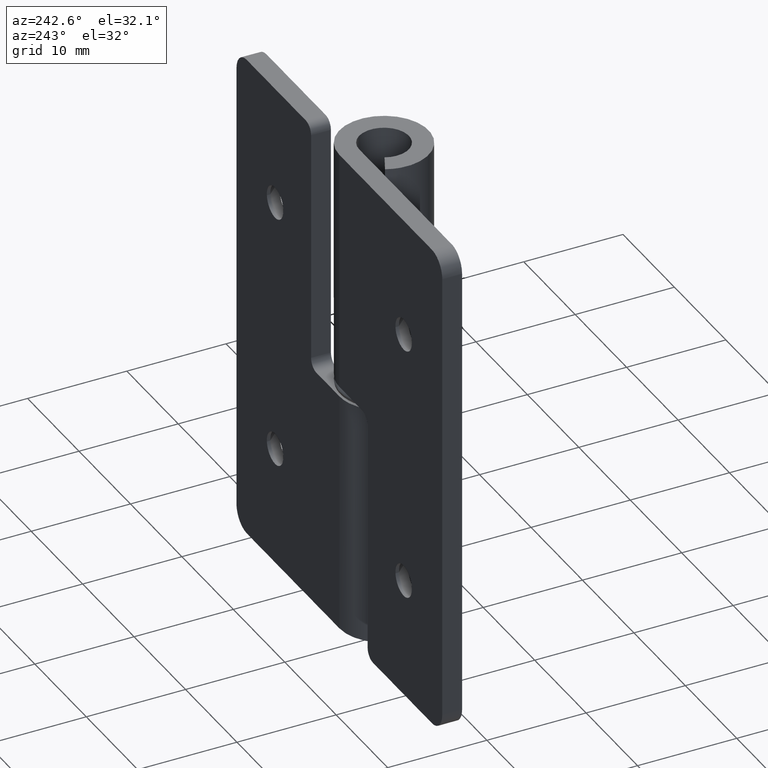
[diagram: clean part render]
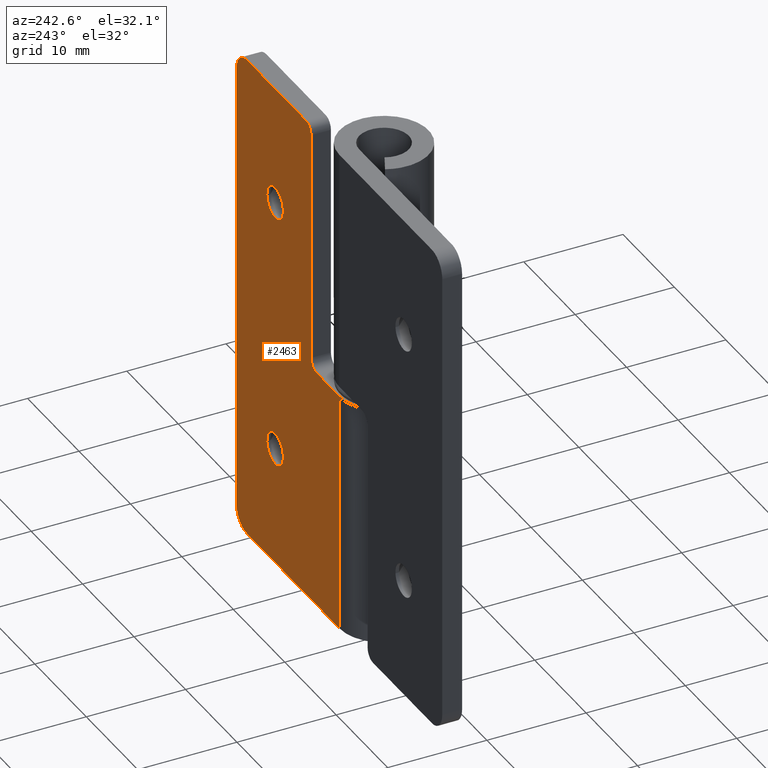
[diagram: same view with one face highlighted and labeled with its STEP entity id]
A machine part, auxiliary view. The second image highlights one B-rep face of the part: STEP entity #2463.
In plain terms, the highlighted face is a freeform B-spline surface patch.
Its self-contained STEP definition (entity closure, byte-faithful):
#1512=CARTESIAN_POINT('',(10.904932266060730,4.499999999995415,38.125534553362833));
#1513=VERTEX_POINT('',#1512);
#1519=CARTESIAN_POINT('',(12.500000000009139,4.499999999995415,39.599999999991027));
#1520=VERTEX_POINT('',#1519);
#1521=CARTESIAN_POINT('',(12.500000000009139,4.499999999995415,39.599999999991027));
#1522=CARTESIAN_POINT('',(11.020975213549372,4.499999999995416,39.599999999991027));
#1523=CARTESIAN_POINT('',(10.904932266060738,4.499999999995414,38.125534553362833));
#1531=(BOUNDED_CURVE()B_SPLINE_CURVE(2,(#1521,#1522,#1523),.UNSPECIFIED.,.F.,.U.)B_SPLINE_CURVE_WITH_KNOTS((3,3),(0.0,0.236331300611382),.UNSPECIFIED.)CURVE()GEOMETRIC_REPRESENTATION_ITEM()RATIONAL_B_SPLINE_CURVE((1.0,0.723120658630251,0.969723356127187))REPRESENTATION_ITEM(''));
#1532=EDGE_CURVE('',#1520,#1513,#1531,.T.);
#1534=CARTESIAN_POINT('',(14.095067733957549,4.499999999995415,37.874465446637167));
#1535=VERTEX_POINT('',#1534);
#1536=CARTESIAN_POINT('',(14.095067733957551,4.499999999995417,37.874465446637174));
#1537=CARTESIAN_POINT('',(14.100000000000177,4.499999999995416,37.937135828688128));
#1538=CARTESIAN_POINT('',(14.100000000000181,4.499999999995415,38.0));
#1539=CARTESIAN_POINT('',(14.100000000000179,4.499999999995415,39.599999999991041));
#1540=CARTESIAN_POINT('',(12.500000000009139,4.499999999995415,39.599999999991027));
#1548=(BOUNDED_CURVE()B_SPLINE_CURVE(2,(#1536,#1537,#1538,#1539,#1540),.UNSPECIFIED.,.F.,.U.)B_SPLINE_CURVE_WITH_KNOTS((3,2,3),(0.736331300611382,0.750000000000000,1.0),.UNSPECIFIED.)CURVE()GEOMETRIC_REPRESENTATION_ITEM()RATIONAL_B_SPLINE_CURVE((0.969723356127187,0.983986122556297,1.0,0.707106781186548,1.0))REPRESENTATION_ITEM(''));
#1549=EDGE_CURVE('',#1535,#1520,#1548,.T.);
#1585=CARTESIAN_POINT('',(12.500000000009139,4.499999999995415,36.400000000008973));
#1586=VERTEX_POINT('',#1585);
#1587=CARTESIAN_POINT('',(12.500000000009139,4.499999999995415,36.400000000008973));
#1588=CARTESIAN_POINT('',(13.979024786468917,4.499999999995416,36.400000000008973));
#1589=CARTESIAN_POINT('',(14.095067733957547,4.499999999995416,37.874465446637181));
#1597=(BOUNDED_CURVE()B_SPLINE_CURVE(2,(#1587,#1588,#1589),.UNSPECIFIED.,.F.,.U.)B_SPLINE_CURVE_WITH_KNOTS((3,3),(0.500000000000000,0.736331300611383),.UNSPECIFIED.)CURVE()GEOMETRIC_REPRESENTATION_ITEM()RATIONAL_B_SPLINE_CURVE((1.0,0.723120658630250,0.969723356127189))REPRESENTATION_ITEM(''));
#1598=EDGE_CURVE('',#1586,#1535,#1597,.T.);
#1600=CARTESIAN_POINT('',(10.904932266060737,4.499999999995415,38.125534553362826));
#1601=CARTESIAN_POINT('',(10.900000000018103,4.499999999995415,38.062864171311872));
#1602=CARTESIAN_POINT('',(10.900000000018110,4.499999999995415,38.0));
#1603=CARTESIAN_POINT('',(10.900000000018105,4.499999999995415,36.400000000008966));
#1604=CARTESIAN_POINT('',(12.500000000009139,4.499999999995415,36.400000000008973));
#1612=(BOUNDED_CURVE()B_SPLINE_CURVE(2,(#1600,#1601,#1602,#1603,#1604),.UNSPECIFIED.,.F.,.U.)B_SPLINE_CURVE_WITH_KNOTS((3,2,3),(0.236331300611382,0.250000000000000,0.500000000000000),.UNSPECIFIED.)CURVE()GEOMETRIC_REPRESENTATION_ITEM()RATIONAL_B_SPLINE_CURVE((0.969723356127187,0.983986122556297,1.0,0.707106781186548,1.0))REPRESENTATION_ITEM(''));
#1613=EDGE_CURVE('',#1513,#1586,#1612,.T.);
#1832=CARTESIAN_POINT('',(10.904932266060630,4.499999999995415,12.125534553362829));
#1833=VERTEX_POINT('',#1832);
#1839=CARTESIAN_POINT('',(12.500000000009040,4.499999999995415,13.599999999991040));
#1840=VERTEX_POINT('',#1839);
#1841=CARTESIAN_POINT('',(12.500000000009040,4.499999999995415,13.599999999991040));
#1842=CARTESIAN_POINT('',(11.020975213549267,4.499999999995416,13.599999999991036));
#1843=CARTESIAN_POINT('',(10.904932266060637,4.499999999995415,12.125534553362824));
#1851=(BOUNDED_CURVE()B_SPLINE_CURVE(2,(#1841,#1842,#1843),.UNSPECIFIED.,.F.,.U.)B_SPLINE_CURVE_WITH_KNOTS((3,3),(0.0,0.236331300611382),.UNSPECIFIED.)CURVE()GEOMETRIC_REPRESENTATION_ITEM()RATIONAL_B_SPLINE_CURVE((1.0,0.723120658630250,0.969723356127188))REPRESENTATION_ITEM(''));
#1852=EDGE_CURVE('',#1840,#1833,#1851,.T.);
#1854=CARTESIAN_POINT('',(14.095067733957450,4.499999999995415,11.874465446637171));
#1855=VERTEX_POINT('',#1854);
#1856=CARTESIAN_POINT('',(14.095067733957451,4.499999999995414,11.874465446637172));
#1857=CARTESIAN_POINT('',(14.100000000000081,4.499999999995414,11.937135828688128));
#1858=CARTESIAN_POINT('',(14.100000000000080,4.499999999995415,12.0));
#1859=CARTESIAN_POINT('',(14.100000000000076,4.499999999995415,13.599999999991036));
#1860=CARTESIAN_POINT('',(12.500000000009040,4.499999999995415,13.599999999991040));
#1868=(BOUNDED_CURVE()B_SPLINE_CURVE(2,(#1856,#1857,#1858,#1859,#1860),.UNSPECIFIED.,.F.,.U.)B_SPLINE_CURVE_WITH_KNOTS((3,2,3),(0.736331300611382,0.750000000000000,1.0),.UNSPECIFIED.)CURVE()GEOMETRIC_REPRESENTATION_ITEM()RATIONAL_B_SPLINE_CURVE((0.969723356127187,0.983986122556297,1.0,0.707106781186548,1.0))REPRESENTATION_ITEM(''));
#1869=EDGE_CURVE('',#1855,#1840,#1868,.T.);
#1905=CARTESIAN_POINT('',(12.500000000009040,4.499999999995415,10.400000000008960));
#1906=VERTEX_POINT('',#1905);
#1907=CARTESIAN_POINT('',(12.500000000009040,4.499999999995415,10.400000000008960));
#1908=CARTESIAN_POINT('',(13.979024786468811,4.499999999995415,10.400000000008962));
#1909=CARTESIAN_POINT('',(14.095067733957450,4.499999999995414,11.874465446637181));
#1917=(BOUNDED_CURVE()B_SPLINE_CURVE(2,(#1907,#1908,#1909),.UNSPECIFIED.,.F.,.U.)B_SPLINE_CURVE_WITH_KNOTS((3,3),(0.500000000000000,0.736331300611382),.UNSPECIFIED.)CURVE()GEOMETRIC_REPRESENTATION_ITEM()RATIONAL_B_SPLINE_CURVE((1.0,0.723120658630250,0.969723356127188))REPRESENTATION_ITEM(''));
#1918=EDGE_CURVE('',#1906,#1855,#1917,.T.);
#1920=CARTESIAN_POINT('',(10.904932266060634,4.499999999995415,12.125534553362820));
#1921=CARTESIAN_POINT('',(10.900000000018006,4.499999999995415,12.062864171311869));
#1922=CARTESIAN_POINT('',(10.900000000018011,4.499999999995415,12.0));
#1923=CARTESIAN_POINT('',(10.900000000018006,4.499999999995415,10.400000000008964));
#1924=CARTESIAN_POINT('',(12.500000000009040,4.499999999995415,10.400000000008960));
#1932=(BOUNDED_CURVE()B_SPLINE_CURVE(2,(#1920,#1921,#1922,#1923,#1924),.UNSPECIFIED.,.F.,.U.)B_SPLINE_CURVE_WITH_KNOTS((3,2,3),(0.236331300611383,0.250000000000000,0.500000000000000),.UNSPECIFIED.)CURVE()GEOMETRIC_REPRESENTATION_ITEM()RATIONAL_B_SPLINE_CURVE((0.969723356127188,0.983986122556297,1.0,0.707106781186548,1.0))REPRESENTATION_ITEM(''));
#1933=EDGE_CURVE('',#1833,#1906,#1932,.T.);
#1970=CARTESIAN_POINT('',(6.500000000000000,4.499999999997845,50.0));
#1971=VERTEX_POINT('',#1970);
#1977=CARTESIAN_POINT('',(5.500000000000000,4.499999999999920,49.0));
#1978=VERTEX_POINT('',#1977);
#1979=CARTESIAN_POINT('',(6.500000000000000,4.499999999997845,50.0));
#1980=CARTESIAN_POINT('',(5.500000000000001,4.499999999998166,50.0));
#1981=CARTESIAN_POINT('',(5.500000000000000,4.499999999998165,49.0));
#1989=(BOUNDED_CURVE()B_SPLINE_CURVE(2,(#1979,#1980,#1981),.UNSPECIFIED.,.F.,.U.)CURVE()GEOMETRIC_REPRESENTATION_ITEM()QUASI_UNIFORM_CURVE()RATIONAL_B_SPLINE_CURVE((1.0,0.707106781186548,1.0))REPRESENTATION_ITEM(''));
#1990=EDGE_CURVE('',#1971,#1978,#1989,.T.);
#2031=CARTESIAN_POINT('',(5.500000000000000,4.499999999999920,25.500000000000000));
#2032=VERTEX_POINT('',#2031);
#2038=CARTESIAN_POINT('',(4.500000000000000,4.499999999999920,24.500000000000000));
#2039=VERTEX_POINT('',#2038);
#2040=CARTESIAN_POINT('',(5.500000000000000,4.499999999999920,25.500000000000000));
#2041=CARTESIAN_POINT('',(5.500000000000001,4.500000000006960,24.500000000000004));
#2042=CARTESIAN_POINT('',(4.500000000000000,4.500000000007280,24.500000000000000));
#2050=(BOUNDED_CURVE()B_SPLINE_CURVE(2,(#2040,#2041,#2042),.UNSPECIFIED.,.F.,.U.)CURVE()GEOMETRIC_REPRESENTATION_ITEM()QUASI_UNIFORM_CURVE()RATIONAL_B_SPLINE_CURVE((1.0,0.707106781186548,1.0))REPRESENTATION_ITEM(''));
#2051=EDGE_CURVE('',#2032,#2039,#2050,.T.);
#2075=CARTESIAN_POINT('',(19.999999999979948,4.499999999993525,48.0));
#2076=VERTEX_POINT('',#2075);
#2077=CARTESIAN_POINT('',(18.000000000023650,4.499999999994165,50.0));
#2078=VERTEX_POINT('',#2077);
#2079=CARTESIAN_POINT('',(19.999999999979948,4.499999999993525,48.0));
#2080=CARTESIAN_POINT('',(20.000096962897349,4.499999999993519,48.204542686967642));
#2081=CARTESIAN_POINT('',(19.949345099950740,4.499999999993555,48.531723872451543));
#2082=CARTESIAN_POINT('',(19.767452516030680,4.499999999993577,48.963279095969661));
#2083=CARTESIAN_POINT('',(19.536874142281079,4.499999999993677,49.303855987999867));
#2084=CARTESIAN_POINT('',(19.238793847995669,4.499999999993790,49.587634645758278));
#2085=CARTESIAN_POINT('',(18.869485574127790,4.499999999993852,49.818357194712462));
#2086=CARTESIAN_POINT('',(18.458144416193299,4.499999999994075,49.965527674863040));
#2087=CARTESIAN_POINT('',(18.147259486372342,4.499999999994041,50.000022580787231));
#2088=CARTESIAN_POINT('',(18.000000000023650,4.499999999994165,50.0));
#2089=B_SPLINE_CURVE_WITH_KNOTS('',3,(#2079,#2080,#2081,#2082,#2083,#2084,#2085,#2086,#2087,#2088),.UNSPECIFIED.,.F.,.U.,(4,1,1,1,1,1,1,4),(0.000000065908332,0.613591239491243,0.981755334275093,1.399006646705077,1.840774083422126,2.208945072050020,2.699833068363459,3.141612365744293),.UNSPECIFIED.);
#2090=EDGE_CURVE('',#2076,#2078,#2089,.T.);
#2137=CARTESIAN_POINT('',(18.000000000023601,4.499999999994165,-1.795055E-014));
#2138=VERTEX_POINT('',#2137);
#2139=CARTESIAN_POINT('',(19.999999999979948,4.499999999993525,2.0));
#2140=VERTEX_POINT('',#2139);
#2141=CARTESIAN_POINT('',(18.000000000023601,4.499999999994165,0.0));
#2142=CARTESIAN_POINT('',(20.000000000023601,4.499999999993526,-2.168404E-015));
#2143=CARTESIAN_POINT('',(20.000000000023601,4.499999999993526,1.999999999999998));
#2151=(BOUNDED_CURVE()B_SPLINE_CURVE(2,(#2141,#2142,#2143),.UNSPECIFIED.,.F.,.U.)CURVE()GEOMETRIC_REPRESENTATION_ITEM()QUASI_UNIFORM_CURVE()RATIONAL_B_SPLINE_CURVE((1.0,0.707106781186548,1.0))REPRESENTATION_ITEM(''));
#2152=EDGE_CURVE('',#2138,#2140,#2151,.T.);
#2196=CARTESIAN_POINT('',(5.500000000000000,4.499999999999920,25.500000000000000));
#2197=CARTESIAN_POINT('',(5.500000000000000,4.499999999999920,49.0));
#2198=QUASI_UNIFORM_CURVE('',1,(#2196,#2197),.UNSPECIFIED.,.F.,.U.);
#2199=EDGE_CURVE('',#2032,#1978,#2198,.T.);
#2210=CARTESIAN_POINT('',(2.361060E-011,4.499999999999920,24.500000000000000));
#2211=VERTEX_POINT('',#2210);
#2212=CARTESIAN_POINT('',(2.361060E-011,4.499999999999920,24.500000000000000));
#2213=CARTESIAN_POINT('',(4.500000000000000,4.499999999999920,24.500000000000000));
#2214=QUASI_UNIFORM_CURVE('',1,(#2212,#2213),.UNSPECIFIED.,.F.,.U.);
#2215=EDGE_CURVE('',#2211,#2039,#2214,.T.);
#2358=CARTESIAN_POINT('',(2.358575E-011,4.499999999999949,-2.352096E-026));
#2359=VERTEX_POINT('',#2358);
#2397=CARTESIAN_POINT('',(2.358575E-011,4.499999999999949,-2.352096E-026));
#2398=CARTESIAN_POINT('',(18.000000000023601,4.499999999994165,-1.795055E-014));
#2399=QUASI_UNIFORM_CURVE('',1,(#2397,#2398),.UNSPECIFIED.,.F.,.U.);
#2400=EDGE_CURVE('',#2359,#2138,#2399,.T.);
#2417=CARTESIAN_POINT('',(6.500000000000000,4.499999999997845,50.0));
#2418=CARTESIAN_POINT('',(18.000000000023650,4.499999999994165,50.0));
#2419=QUASI_UNIFORM_CURVE('',1,(#2417,#2418),.UNSPECIFIED.,.F.,.U.);
#2420=EDGE_CURVE('',#1971,#2078,#2419,.T.);
#2426=CARTESIAN_POINT('',(20.998999961213940,4.499999999993205,52.497499903090286));
#2427=CARTESIAN_POINT('',(-0.999000497652105,4.500000000000238,52.497499903090301));
#2428=CARTESIAN_POINT('',(20.998999961213890,4.499999999993205,-2.497501244194829));
#2429=CARTESIAN_POINT('',(-0.999000497652159,4.500000000000238,-2.497501244194810));
#2430=B_SPLINE_SURFACE_WITH_KNOTS('',1,1,((#2426,#2428),(#2427,#2429)),.UNSPECIFIED.,.F.,.F.,.U.,(2,2),(2,2),(0.0,21.998000458866048),(0.0,54.995001147285123),.UNSPECIFIED.);
#2431=ORIENTED_EDGE('',*,*,#2420,.T.);
#2432=ORIENTED_EDGE('',*,*,#2090,.F.);
#2433=CARTESIAN_POINT('',(19.999999999979948,4.499999999993525,48.0));
#2434=CARTESIAN_POINT('',(19.999999999979948,4.499999999993525,2.0));
#2435=QUASI_UNIFORM_CURVE('',1,(#2433,#2434),.UNSPECIFIED.,.F.,.U.);
#2436=EDGE_CURVE('',#2076,#2140,#2435,.T.);
#2437=ORIENTED_EDGE('',*,*,#2436,.T.);
#2438=ORIENTED_EDGE('',*,*,#2152,.F.);
#2439=ORIENTED_EDGE('',*,*,#2400,.F.);
#2440=CARTESIAN_POINT('',(2.361060E-011,4.499999999999920,24.500000000000000));
#2441=CARTESIAN_POINT('',(2.358575E-011,4.499999999999949,-2.352096E-026));
#2442=QUASI_UNIFORM_CURVE('',1,(#2440,#2441),.UNSPECIFIED.,.F.,.U.);
#2443=EDGE_CURVE('',#2211,#2359,#2442,.T.);
#2444=ORIENTED_EDGE('',*,*,#2443,.F.);
#2445=ORIENTED_EDGE('',*,*,#2215,.T.);
#2446=ORIENTED_EDGE('',*,*,#2051,.F.);
#2447=ORIENTED_EDGE('',*,*,#2199,.T.);
#2448=ORIENTED_EDGE('',*,*,#1990,.F.);
#2449=EDGE_LOOP('',(#2431,#2432,#2437,#2438,#2439,#2444,#2445,#2446,#2447,#2448));
#2450=FACE_OUTER_BOUND('',#2449,.T.);
#2451=ORIENTED_EDGE('',*,*,#1918,.T.);
#2452=ORIENTED_EDGE('',*,*,#1869,.T.);
#2453=ORIENTED_EDGE('',*,*,#1852,.T.);
#2454=ORIENTED_EDGE('',*,*,#1933,.T.);
#2455=EDGE_LOOP('',(#2451,#2452,#2453,#2454));
#2456=FACE_BOUND('',#2455,.T.);
#2457=ORIENTED_EDGE('',*,*,#1598,.T.);
#2458=ORIENTED_EDGE('',*,*,#1549,.T.);
#2459=ORIENTED_EDGE('',*,*,#1532,.T.);
#2460=ORIENTED_EDGE('',*,*,#1613,.T.);
#2461=EDGE_LOOP('',(#2457,#2458,#2459,#2460));
#2462=FACE_BOUND('',#2461,.T.);
#2463=ADVANCED_FACE('',(#2450,#2456,#2462),#2430,.F.);